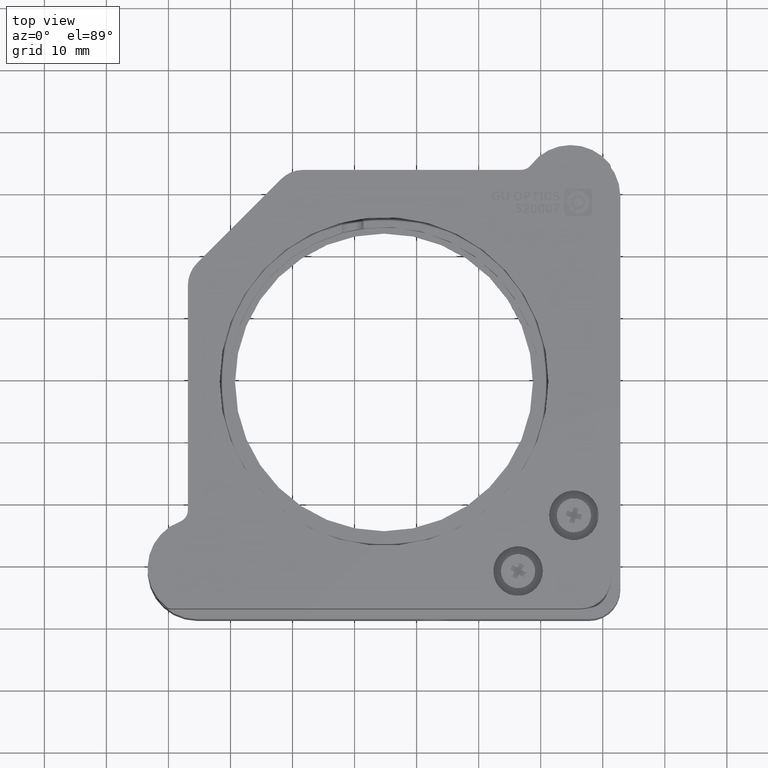
[diagram: clean part render]
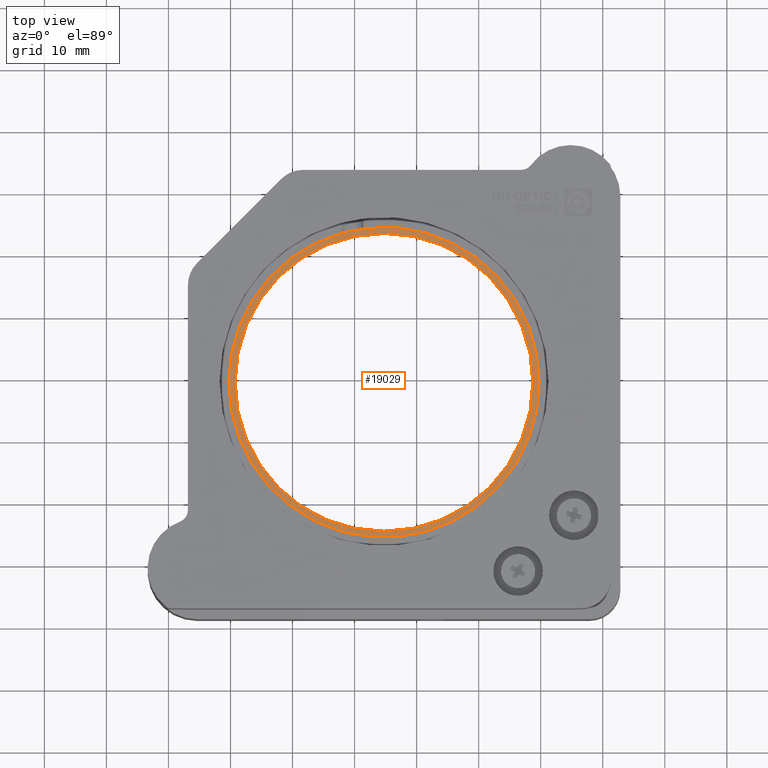
[diagram: same view with one face highlighted and labeled with its STEP entity id]
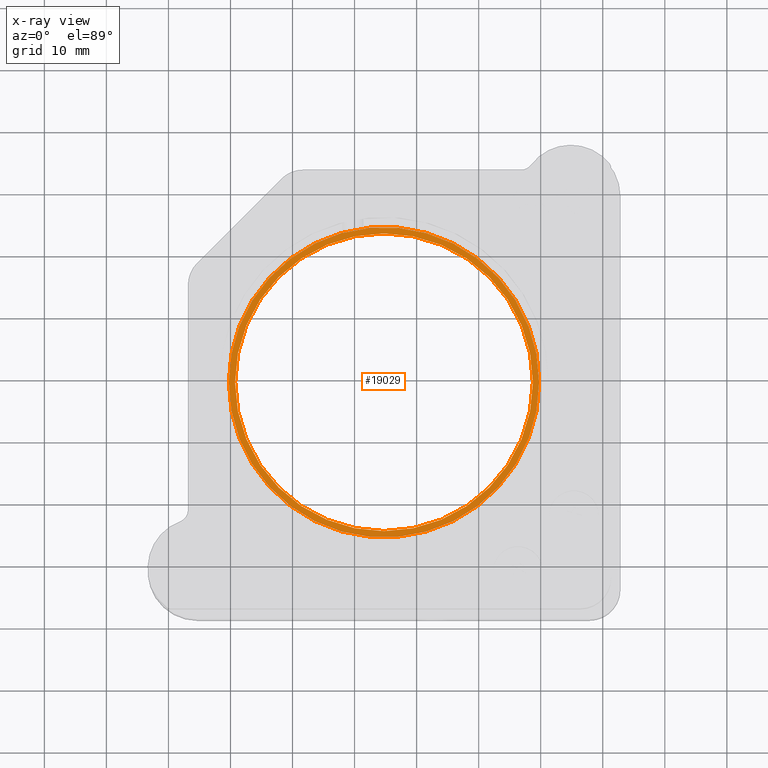
[diagram: x-ray of the same camera — body ghosted, the highlighted face saturated]
A machine part, top view. The second image highlights one B-rep face of the part: STEP entity #19029.
The next image is the same camera in x-ray: the body ghosted, the highlighted face saturated — about 0% of this face is hidden behind the body in this view.
In plain terms, the highlighted planar face has unit normal (0, 0, 1).
Its self-contained STEP definition (entity closure, byte-faithful):
#1202 = DIRECTION ( 'NONE',  ( 0.0000000000000000000, 0.0000000000000000000, 1.000000000000000000 ) ) ;
#1588 = CARTESIAN_POINT ( 'NONE',  ( 8.739698810427736200, 19.05503669957007400, 47.90000000000001300 ) ) ;
#1663 = AXIS2_PLACEMENT_3D ( 'NONE', #26800, #26915, #26692 ) ;
#1995 = AXIS2_PLACEMENT_3D ( 'NONE', #23145, #7143, #25859 ) ;
#2847 = AXIS2_PLACEMENT_3D ( 'NONE', #17124, #1202, #19850 ) ;
#3863 = FACE_OUTER_BOUND ( 'NONE', #32398, .T. ) ;
#4378 = CIRCLE ( 'NONE', #2847, 25.00000000000000000 ) ;
#5128 = EDGE_CURVE ( 'NONE', #5395, #5245, #33684, .T. ) ;
#5245 = VERTEX_POINT ( 'NONE', #15200 ) ;
#5395 = VERTEX_POINT ( 'NONE', #9710 ) ;
#5749 = CARTESIAN_POINT ( 'NONE',  ( -15.26030118957226400, 19.05503669957007400, 47.90000000000001300 ) ) ;
#7143 = DIRECTION ( 'NONE',  ( 0.0000000000000000000, 0.0000000000000000000, 1.000000000000000000 ) ) ;
#8012 = ORIENTED_EDGE ( 'NONE', *, *, #21923, .T. ) ;
#8346 = ORIENTED_EDGE ( 'NONE', *, *, #10544, .T. ) ;
#8420 = DIRECTION ( 'NONE',  ( 1.000000000000000000, 0.0000000000000000000, 0.0000000000000000000 ) ) ;
#8785 = ORIENTED_EDGE ( 'NONE', *, *, #5128, .T. ) ;
#9710 = CARTESIAN_POINT ( 'NONE',  ( 9.739698810427736200, 19.05503669957007400, 47.90000000000001300 ) ) ;
#10544 = EDGE_CURVE ( 'NONE', #15542, #31893, #12673, .T. ) ;
#10962 = ORIENTED_EDGE ( 'NONE', *, *, #18500, .T. ) ;
#12673 = CIRCLE ( 'NONE', #16498, 24.00000000000000000 ) ;
#14213 = DIRECTION ( 'NONE',  ( -0.0000000000000000000, -0.0000000000000000000, -1.000000000000000000 ) ) ;
#15200 = CARTESIAN_POINT ( 'NONE',  ( -40.26030118957226700, 19.05503669957007800, 47.90000000000001300 ) ) ;
#15542 = VERTEX_POINT ( 'NONE', #1588 ) ;
#16498 = AXIS2_PLACEMENT_3D ( 'NONE', #30332, #14213, #32999 ) ;
#17124 = CARTESIAN_POINT ( 'NONE',  ( -15.26030118957226400, 19.05503669957007400, 47.90000000000001300 ) ) ;
#18500 = EDGE_CURVE ( 'NONE', #5245, #5395, #4378, .T. ) ;
#19029 = ADVANCED_FACE ( 'NONE', ( #3863, #31488 ), #30644, .T. ) ;
#19850 = DIRECTION ( 'NONE',  ( 1.000000000000000000, 0.0000000000000000000, 0.0000000000000000000 ) ) ;
#21923 = EDGE_CURVE ( 'NONE', #31893, #15542, #23969, .T. ) ;
#21984 = EDGE_LOOP ( 'NONE', ( #8346, #8012 ) ) ;
#22961 = CARTESIAN_POINT ( 'NONE',  ( -39.26030118957226700, 19.05503669957007800, 47.90000000000001300 ) ) ;
#23145 = CARTESIAN_POINT ( 'NONE',  ( -15.26030118957226400, 19.05503669957007400, 47.90000000000001300 ) ) ;
#23969 = CIRCLE ( 'NONE', #25906, 24.00000000000000000 ) ;
#24462 = DIRECTION ( 'NONE',  ( -0.0000000000000000000, -0.0000000000000000000, -1.000000000000000000 ) ) ;
#25859 = DIRECTION ( 'NONE',  ( 1.000000000000000000, 0.0000000000000000000, -0.0000000000000000000 ) ) ;
#25906 = AXIS2_PLACEMENT_3D ( 'NONE', #5749, #24462, #8420 ) ;
#26692 = DIRECTION ( 'NONE',  ( 1.000000000000000000, 0.0000000000000000000, 0.0000000000000000000 ) ) ;
#26800 = CARTESIAN_POINT ( 'NONE',  ( -15.26030118957226400, 19.05503669957007400, 47.90000000000001300 ) ) ;
#26915 = DIRECTION ( 'NONE',  ( 0.0000000000000000000, 0.0000000000000000000, 1.000000000000000000 ) ) ;
#30332 = CARTESIAN_POINT ( 'NONE',  ( -15.26030118957226400, 19.05503669957007400, 47.90000000000001300 ) ) ;
#30644 = PLANE ( 'NONE',  #1995 ) ;
#31488 = FACE_BOUND ( 'NONE', #21984, .T. ) ;
#31893 = VERTEX_POINT ( 'NONE', #22961 ) ;
#32398 = EDGE_LOOP ( 'NONE', ( #8785, #10962 ) ) ;
#32999 = DIRECTION ( 'NONE',  ( 1.000000000000000000, 0.0000000000000000000, 0.0000000000000000000 ) ) ;
#33684 = CIRCLE ( 'NONE', #1663, 25.00000000000000000 ) ;